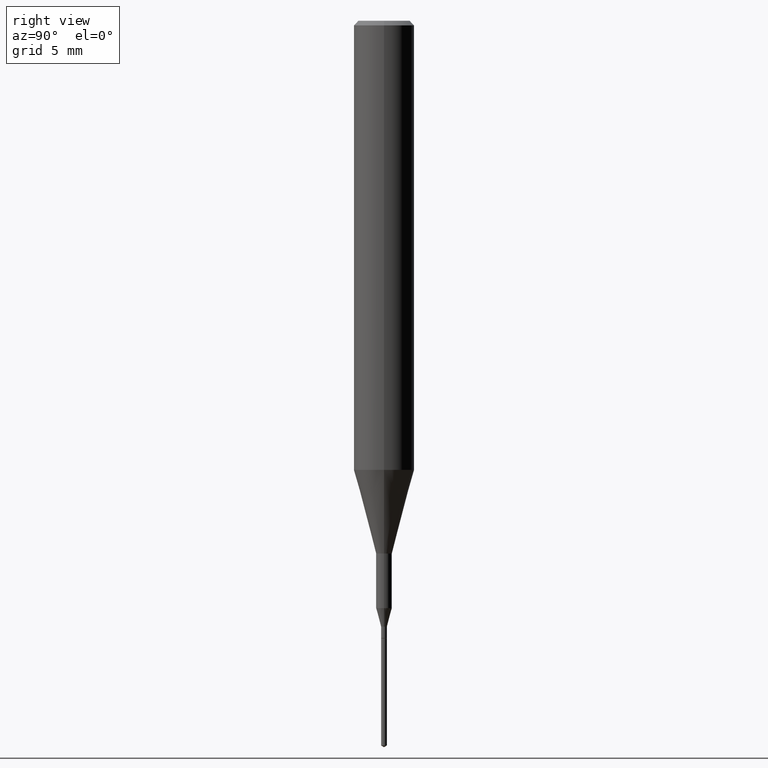
[diagram: clean part render]
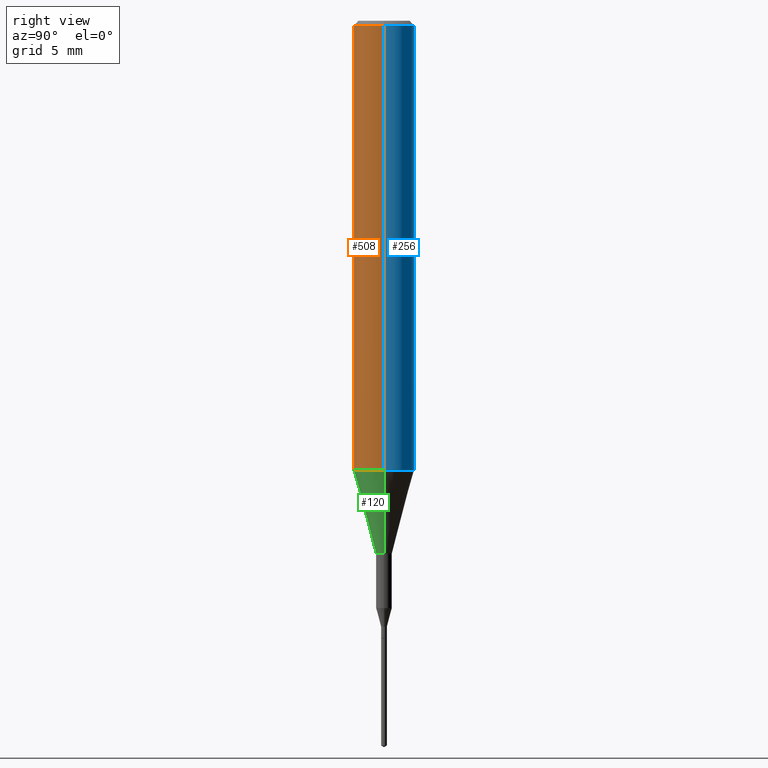
[diagram: same view with three faces highlighted in distinct colors, each labeled with its STEP entity id]
A machine part, right view with three faces highlighted in distinct colors.
Their STEP definitions:

[orange] entity #508 — the highlighted cylindrical surface (edge-blend (fillet) strip) has radius 1.5875 mm, axis along (-0, 0, 1).
#3 = AXIS2_PLACEMENT_3D ( 'NONE', #407, #585, #452 ) ;
#25 = LINE ( 'NONE', #178, #322 ) ;
#28 = VERTEX_POINT ( 'NONE', #100 ) ;
#83 = CARTESIAN_POINT ( 'NONE',  ( -0.06250000000000011102, -2.793884921928740709E-15, -0.9273926501499395458 ) ) ;
#89 = CIRCLE ( 'NONE', #275, 0.06250000000000000000 ) ;
#100 = CARTESIAN_POINT ( 'NONE',  ( 0.06250000000000011102, -3.674409299134196572E-15, -0.9273926501499395458 ) ) ;
#117 = DIRECTION ( 'NONE',  ( -2.445468806185136877E-29, 3.491481338843145188E-15, 1.000000000000000000 ) ) ;
#125 = LINE ( 'NONE', #388, #546 ) ;
#130 = EDGE_CURVE ( 'NONE', #368, #28, #498, .T. ) ;
#131 = ORIENTED_EDGE ( 'NONE', *, *, #281, .T. ) ;
#144 = CARTESIAN_POINT ( 'NONE',  ( 2.267909797027042920E-29, -3.237974131778804114E-15, -0.9273926501499395458 ) ) ;
#149 = EDGE_CURVE ( 'NONE', #366, #316, #89, .T. ) ;
#178 = CARTESIAN_POINT ( 'NONE',  ( 0.06250000000000005551, -4.364351673553920638E-16, 3.047610484872462323E-30 ) ) ;
#201 = CARTESIAN_POINT ( 'NONE',  ( 2.292627005798581499E-31, -3.273263755165471417E-17, -0.009375000000000063838 ) ) ;
#231 = DIRECTION ( 'NONE',  ( -2.445468806185136597E-29, 3.491481338843145583E-15, 1.000000000000000000 ) ) ;
#273 = DIRECTION ( 'NONE',  ( -2.445468806185136877E-29, 3.491481338843145188E-15, 1.000000000000000000 ) ) ;
#275 = AXIS2_PLACEMENT_3D ( 'NONE', #201, #555, #474 ) ;
#280 = FACE_OUTER_BOUND ( 'NONE', #364, .T. ) ;
#281 = EDGE_CURVE ( 'NONE', #28, #316, #25, .T. ) ;
#316 = VERTEX_POINT ( 'NONE', #529 ) ;
#322 = VECTOR ( 'NONE', #117, 39.37007874015748143 ) ;
#342 = EDGE_CURVE ( 'NONE', #368, #366, #125, .T. ) ;
#355 = ORIENTED_EDGE ( 'NONE', *, *, #149, .F. ) ;
#359 = ORIENTED_EDGE ( 'NONE', *, *, #342, .F. ) ;
#364 = EDGE_LOOP ( 'NONE', ( #359, #433, #131, #355 ) ) ;
#366 = VERTEX_POINT ( 'NONE', #577 ) ;
#368 = VERTEX_POINT ( 'NONE', #83 ) ;
#388 = CARTESIAN_POINT ( 'NONE',  ( -0.06250000000000005551, 4.440892098500630106E-16, -3.074334431409318916E-30 ) ) ;
#407 = CARTESIAN_POINT ( 'NONE',  ( 0.000000000000000000, 0.000000000000000000, 0.000000000000000000 ) ) ;
#433 = ORIENTED_EDGE ( 'NONE', *, *, #130, .T. ) ;
#449 = CYLINDRICAL_SURFACE ( 'NONE', #3, 0.06250000000000005551 ) ;
#452 = DIRECTION ( 'NONE',  ( 1.000000000000000000, -6.982962677686266711E-15, 4.876176775795935232E-29 ) ) ;
#466 = AXIS2_PLACEMENT_3D ( 'NONE', #144, #231, #502 ) ;
#474 = DIRECTION ( 'NONE',  ( 1.000000000000000000, -6.982962677686266711E-15, 0.000000000000000000 ) ) ;
#498 = CIRCLE ( 'NONE', #466, 0.06250000000000011102 ) ;
#502 = DIRECTION ( 'NONE',  ( 1.000000000000000000, -6.982962677686265922E-15, 0.000000000000000000 ) ) ;
#508 = ADVANCED_FACE ( 'NONE', ( #280 ), #449, .T. ) ;
#529 = CARTESIAN_POINT ( 'NONE',  ( 0.06250000000000000000, -4.691678049070464390E-16, -0.009375000000000063838 ) ) ;
#546 = VECTOR ( 'NONE', #273, 39.37007874015748143 ) ;
#555 = DIRECTION ( 'NONE',  ( -2.445468806185136597E-29, 3.491481338843145583E-15, 1.000000000000000000 ) ) ;
#577 = CARTESIAN_POINT ( 'NONE',  ( -0.06250000000000000000, -1.191264174815165938E-15, -0.009375000000000063838 ) ) ;
#585 = DIRECTION ( 'NONE',  ( -2.445468806185136597E-29, 3.491481338843145583E-15, 1.000000000000000000 ) ) ;

[blue] entity #256 — the highlighted cylindrical surface (edge-blend (fillet) strip) has radius 1.5875 mm, axis along (-0, 0, 1).
#25 = LINE ( 'NONE', #178, #322 ) ;
#28 = VERTEX_POINT ( 'NONE', #100 ) ;
#30 = ORIENTED_EDGE ( 'NONE', *, *, #342, .T. ) ;
#43 = CARTESIAN_POINT ( 'NONE',  ( 2.267909797027042920E-29, -3.237974131778804114E-15, -0.9273926501499395458 ) ) ;
#53 = AXIS2_PLACEMENT_3D ( 'NONE', #430, #568, #307 ) ;
#83 = CARTESIAN_POINT ( 'NONE',  ( -0.06250000000000011102, -2.793884921928740709E-15, -0.9273926501499395458 ) ) ;
#100 = CARTESIAN_POINT ( 'NONE',  ( 0.06250000000000011102, -3.674409299134196572E-15, -0.9273926501499395458 ) ) ;
#107 = CYLINDRICAL_SURFACE ( 'NONE', #292, 0.06250000000000005551 ) ;
#110 = AXIS2_PLACEMENT_3D ( 'NONE', #43, #410, #588 ) ;
#117 = DIRECTION ( 'NONE',  ( -2.445468806185136877E-29, 3.491481338843145188E-15, 1.000000000000000000 ) ) ;
#125 = LINE ( 'NONE', #388, #546 ) ;
#171 = ORIENTED_EDGE ( 'NONE', *, *, #523, .T. ) ;
#178 = CARTESIAN_POINT ( 'NONE',  ( 0.06250000000000005551, -4.364351673553920638E-16, 3.047610484872462323E-30 ) ) ;
#244 = CIRCLE ( 'NONE', #53, 0.06250000000000000000 ) ;
#250 = DIRECTION ( 'NONE',  ( -2.445468806185136597E-29, 3.491481338843145583E-15, 1.000000000000000000 ) ) ;
#256 = ADVANCED_FACE ( 'NONE', ( #512 ), #107, .T. ) ;
#273 = DIRECTION ( 'NONE',  ( -2.445468806185136877E-29, 3.491481338843145188E-15, 1.000000000000000000 ) ) ;
#281 = EDGE_CURVE ( 'NONE', #28, #316, #25, .T. ) ;
#292 = AXIS2_PLACEMENT_3D ( 'NONE', #296, #250, #423 ) ;
#296 = CARTESIAN_POINT ( 'NONE',  ( 0.000000000000000000, 0.000000000000000000, 0.000000000000000000 ) ) ;
#306 = EDGE_CURVE ( 'NONE', #316, #366, #244, .T. ) ;
#307 = DIRECTION ( 'NONE',  ( 1.000000000000000000, -6.982962677686266711E-15, 0.000000000000000000 ) ) ;
#314 = ORIENTED_EDGE ( 'NONE', *, *, #306, .F. ) ;
#316 = VERTEX_POINT ( 'NONE', #529 ) ;
#322 = VECTOR ( 'NONE', #117, 39.37007874015748143 ) ;
#329 = CIRCLE ( 'NONE', #110, 0.06250000000000011102 ) ;
#342 = EDGE_CURVE ( 'NONE', #368, #366, #125, .T. ) ;
#366 = VERTEX_POINT ( 'NONE', #577 ) ;
#368 = VERTEX_POINT ( 'NONE', #83 ) ;
#388 = CARTESIAN_POINT ( 'NONE',  ( -0.06250000000000005551, 4.440892098500630106E-16, -3.074334431409318916E-30 ) ) ;
#410 = DIRECTION ( 'NONE',  ( -2.445468806185136597E-29, 3.491481338843145583E-15, 1.000000000000000000 ) ) ;
#412 = ORIENTED_EDGE ( 'NONE', *, *, #281, .F. ) ;
#423 = DIRECTION ( 'NONE',  ( 1.000000000000000000, -6.982962677686266711E-15, 4.876176775795935232E-29 ) ) ;
#430 = CARTESIAN_POINT ( 'NONE',  ( 2.292627005798581499E-31, -3.273263755165471417E-17, -0.009375000000000063838 ) ) ;
#446 = EDGE_LOOP ( 'NONE', ( #171, #30, #314, #412 ) ) ;
#512 = FACE_OUTER_BOUND ( 'NONE', #446, .T. ) ;
#523 = EDGE_CURVE ( 'NONE', #28, #368, #329, .T. ) ;
#529 = CARTESIAN_POINT ( 'NONE',  ( 0.06250000000000000000, -4.691678049070464390E-16, -0.009375000000000063838 ) ) ;
#546 = VECTOR ( 'NONE', #273, 39.37007874015748143 ) ;
#568 = DIRECTION ( 'NONE',  ( -2.445468806185136597E-29, 3.491481338843145583E-15, 1.000000000000000000 ) ) ;
#577 = CARTESIAN_POINT ( 'NONE',  ( -0.06250000000000000000, -1.191264174815165938E-15, -0.009375000000000063838 ) ) ;
#588 = DIRECTION ( 'NONE',  ( 1.000000000000000000, -6.982962677686265922E-15, 0.000000000000000000 ) ) ;

[green] entity #120 — the highlighted conical surface has half-angle 15 deg.
#21 = AXIS2_PLACEMENT_3D ( 'NONE', #326, #450, #41 ) ;
#28 = VERTEX_POINT ( 'NONE', #100 ) ;
#41 = DIRECTION ( 'NONE',  ( 1.000000000000000000, -6.982962677686265922E-15, 0.000000000000000000 ) ) ;
#55 = LINE ( 'NONE', #556, #195 ) ;
#59 = CIRCLE ( 'NONE', #396, 0.01624999999999999709 ) ;
#83 = CARTESIAN_POINT ( 'NONE',  ( -0.06250000000000011102, -2.793884921928740709E-15, -0.9273926501499395458 ) ) ;
#100 = CARTESIAN_POINT ( 'NONE',  ( 0.06250000000000011102, -3.674409299134196572E-15, -0.9273926501499395458 ) ) ;
#113 = CARTESIAN_POINT ( 'NONE',  ( 0.01624999999999999709, -3.954102616239861778E-15, -1.100000000000000089 ) ) ;
#120 = ADVANCED_FACE ( 'NONE', ( #198 ), #196, .T. ) ;
#128 = ORIENTED_EDGE ( 'NONE', *, *, #240, .T. ) ;
#130 = EDGE_CURVE ( 'NONE', #368, #28, #498, .T. ) ;
#142 = CARTESIAN_POINT ( 'NONE',  ( 2.690015686803650369E-29, -3.840629472727460101E-15, -1.100000000000000089 ) ) ;
#144 = CARTESIAN_POINT ( 'NONE',  ( 2.267909797027042920E-29, -3.237974131778804114E-15, -0.9273926501499395458 ) ) ;
#190 = VERTEX_POINT ( 'NONE', #113 ) ;
#195 = VECTOR ( 'NONE', #425, 39.37007874015748143 ) ;
#196 = CONICAL_SURFACE ( 'NONE', #21, 0.06250000000000011102, 0.2617993877991501850 ) ;
#198 = FACE_OUTER_BOUND ( 'NONE', #435, .T. ) ;
#202 = LINE ( 'NONE', #514, #302 ) ;
#209 = DIRECTION ( 'NONE',  ( 0.2588190451025214611, 1.565188264969620982E-15, 0.9659258262890679791 ) ) ;
#219 = VERTEX_POINT ( 'NONE', #380 ) ;
#231 = DIRECTION ( 'NONE',  ( -2.445468806185136597E-29, 3.491481338843145583E-15, 1.000000000000000000 ) ) ;
#232 = EDGE_CURVE ( 'NONE', #219, #368, #55, .T. ) ;
#240 = EDGE_CURVE ( 'NONE', #190, #28, #202, .T. ) ;
#302 = VECTOR ( 'NONE', #209, 39.37007874015748143 ) ;
#326 = CARTESIAN_POINT ( 'NONE',  ( 2.267909797027042920E-29, -3.237974131778804114E-15, -0.9273926501499395458 ) ) ;
#368 = VERTEX_POINT ( 'NONE', #83 ) ;
#380 = CARTESIAN_POINT ( 'NONE',  ( -0.01624999999999999709, -3.921992392279115415E-15, -1.100000000000000089 ) ) ;
#396 = AXIS2_PLACEMENT_3D ( 'NONE', #142, #503, #500 ) ;
#425 = DIRECTION ( 'NONE',  ( -0.2588190451025214611, 5.211531920934550253E-15, 0.9659258262890679791 ) ) ;
#435 = EDGE_LOOP ( 'NONE', ( #578, #448, #128, #569 ) ) ;
#448 = ORIENTED_EDGE ( 'NONE', *, *, #469, .T. ) ;
#450 = DIRECTION ( 'NONE',  ( -2.445468806185136597E-29, 3.491481338843145583E-15, 1.000000000000000000 ) ) ;
#466 = AXIS2_PLACEMENT_3D ( 'NONE', #144, #231, #502 ) ;
#469 = EDGE_CURVE ( 'NONE', #219, #190, #59, .T. ) ;
#498 = CIRCLE ( 'NONE', #466, 0.06250000000000011102 ) ;
#500 = DIRECTION ( 'NONE',  ( 1.000000000000000000, -6.982962677686259611E-15, 0.000000000000000000 ) ) ;
#502 = DIRECTION ( 'NONE',  ( 1.000000000000000000, -6.982962677686265922E-15, 0.000000000000000000 ) ) ;
#503 = DIRECTION ( 'NONE',  ( -2.445468806185136597E-29, 3.491481338843145583E-15, 1.000000000000000000 ) ) ;
#514 = CARTESIAN_POINT ( 'NONE',  ( 0.06250000000000011102, -3.674409299134196572E-15, -0.9273926501499395458 ) ) ;
#556 = CARTESIAN_POINT ( 'NONE',  ( -0.06250000000000011102, -2.793884921928740709E-15, -0.9273926501499395458 ) ) ;
#569 = ORIENTED_EDGE ( 'NONE', *, *, #130, .F. ) ;
#578 = ORIENTED_EDGE ( 'NONE', *, *, #232, .F. ) ;